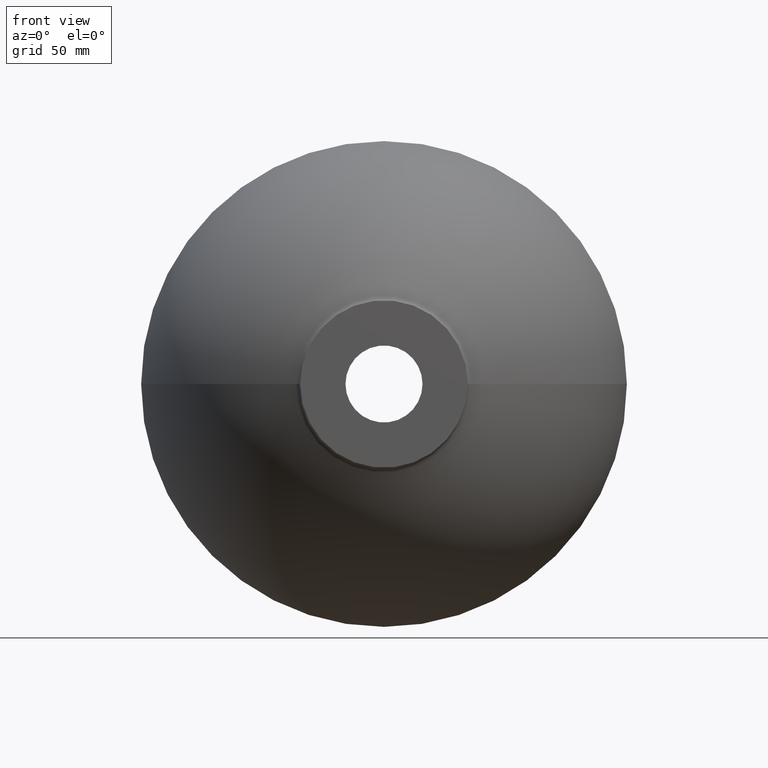
[diagram: clean part render]
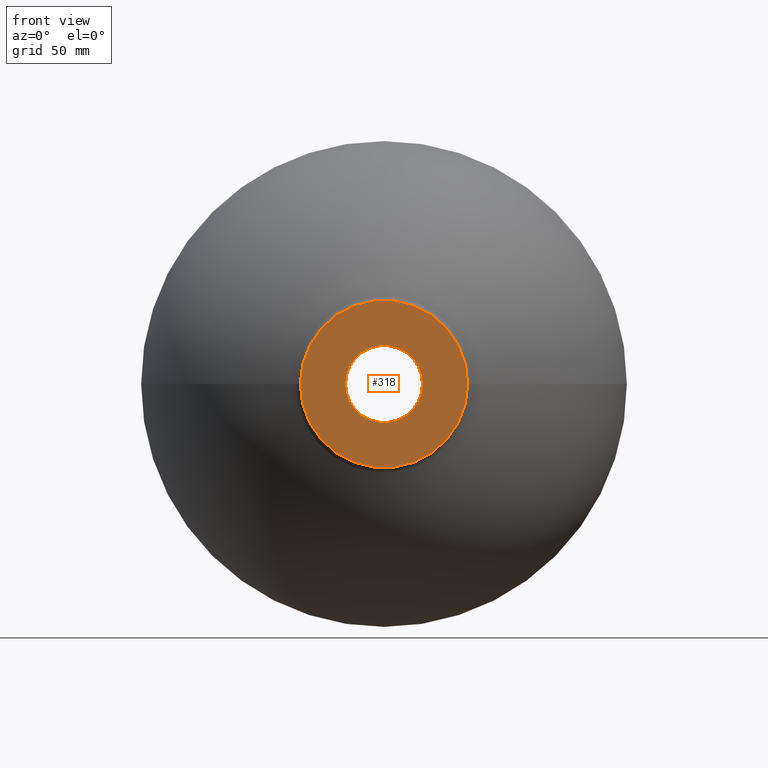
[diagram: same view with one face highlighted and labeled with its STEP entity id]
A machine part, front view. The second image highlights one B-rep face of the part: STEP entity #318.
In plain terms, the highlighted planar face has unit normal (0, -1, 0).
Its self-contained STEP definition (entity closure, byte-faithful):
#9 = CARTESIAN_POINT ( 'NONE',  ( 1.387778780781445700E-014, 0.0000000000000000000, 0.0000000000000000000 ) ) ;
#10 = DIRECTION ( 'NONE',  ( -1.104785946437366900E-016, 1.000000000000000000, -0.0000000000000000000 ) ) ;
#12 = AXIS2_PLACEMENT_3D ( 'NONE', #9, #66, #36 ) ;
#22 = DIRECTION ( 'NONE',  ( 1.000000000000000000, 1.104785946437366900E-016, 0.0000000000000000000 ) ) ;
#25 = ORIENTED_EDGE ( 'NONE', *, *, #341, .T. ) ;
#34 = DIRECTION ( 'NONE',  ( -1.000000000000000000, -1.104785946437366900E-016, 0.0000000000000000000 ) ) ;
#36 = DIRECTION ( 'NONE',  ( -1.000000000000000000, -1.104785946437366900E-016, 0.0000000000000000000 ) ) ;
#47 = CIRCLE ( 'NONE', #12, 50.00000000000000000 ) ;
#50 = VERTEX_POINT ( 'NONE', #179 ) ;
#58 = DIRECTION ( 'NONE',  ( -1.000000000000000000, -1.104785946437366800E-016, 0.0000000000000000000 ) ) ;
#66 = DIRECTION ( 'NONE',  ( -1.104785946437366900E-016, 1.000000000000000000, -0.0000000000000000000 ) ) ;
#76 = DIRECTION ( 'NONE',  ( -1.000000000000000000, -1.104785946437366800E-016, 0.0000000000000000000 ) ) ;
#77 = CIRCLE ( 'NONE', #129, 50.00000000000000000 ) ;
#82 = CARTESIAN_POINT ( 'NONE',  ( -23.00000000000001400, -1.153895334038977400E-015, 0.0000000000000000000 ) ) ;
#91 = DIRECTION ( 'NONE',  ( 1.104785946437366900E-016, -1.000000000000000000, 0.0000000000000000000 ) ) ;
#94 = FACE_BOUND ( 'NONE', #240, .T. ) ;
#96 = VERTEX_POINT ( 'NONE', #332 ) ;
#100 = ORIENTED_EDGE ( 'NONE', *, *, #118, .T. ) ;
#101 = CIRCLE ( 'NONE', #457, 23.00000000000002800 ) ;
#102 = CARTESIAN_POINT ( 'NONE',  ( 1.387778780781445700E-014, 0.0000000000000000000, 0.0000000000000000000 ) ) ;
#113 = AXIS2_PLACEMENT_3D ( 'NONE', #82, #91, #22 ) ;
#117 = DIRECTION ( 'NONE',  ( -1.104785946437366900E-016, 1.000000000000000000, -0.0000000000000000000 ) ) ;
#118 = EDGE_CURVE ( 'NONE', #50, #246, #350, .T. ) ;
#129 = AXIS2_PLACEMENT_3D ( 'NONE', #252, #117, #34 ) ;
#155 = DIRECTION ( 'NONE',  ( -1.104785946437366900E-016, 1.000000000000000000, -0.0000000000000000000 ) ) ;
#179 = CARTESIAN_POINT ( 'NONE',  ( 23.00000000000004300, 2.541007676805946200E-015, 2.816687638038916300E-015 ) ) ;
#205 = PLANE ( 'NONE',  #113 ) ;
#213 = EDGE_CURVE ( 'NONE', #266, #96, #77, .T. ) ;
#227 = CARTESIAN_POINT ( 'NONE',  ( -23.00000000000001400, -2.541007676805946600E-015, 0.0000000000000000000 ) ) ;
#234 = FACE_OUTER_BOUND ( 'NONE', #312, .T. ) ;
#240 = EDGE_LOOP ( 'NONE', ( #25, #100 ) ) ;
#241 = ORIENTED_EDGE ( 'NONE', *, *, #254, .F. ) ;
#246 = VERTEX_POINT ( 'NONE', #227 ) ;
#252 = CARTESIAN_POINT ( 'NONE',  ( 1.387778780781445700E-014, 0.0000000000000000000, 0.0000000000000000000 ) ) ;
#254 = EDGE_CURVE ( 'NONE', #96, #266, #47, .T. ) ;
#259 = CARTESIAN_POINT ( 'NONE',  ( 1.387778780781445700E-014, 0.0000000000000000000, 0.0000000000000000000 ) ) ;
#266 = VERTEX_POINT ( 'NONE', #339 ) ;
#312 = EDGE_LOOP ( 'NONE', ( #415, #241 ) ) ;
#318 = ADVANCED_FACE ( 'NONE', ( #94, #234 ), #205, .T. ) ;
#332 = CARTESIAN_POINT ( 'NONE',  ( 50.00000000000001400, 5.523929732186834300E-015, 6.123233995736766900E-015 ) ) ;
#339 = CARTESIAN_POINT ( 'NONE',  ( -49.99999999999998600, -5.523929732186834300E-015, 0.0000000000000000000 ) ) ;
#341 = EDGE_CURVE ( 'NONE', #246, #50, #101, .T. ) ;
#350 = CIRCLE ( 'NONE', #382, 23.00000000000002800 ) ;
#382 = AXIS2_PLACEMENT_3D ( 'NONE', #259, #155, #76 ) ;
#415 = ORIENTED_EDGE ( 'NONE', *, *, #213, .F. ) ;
#457 = AXIS2_PLACEMENT_3D ( 'NONE', #102, #10, #58 ) ;